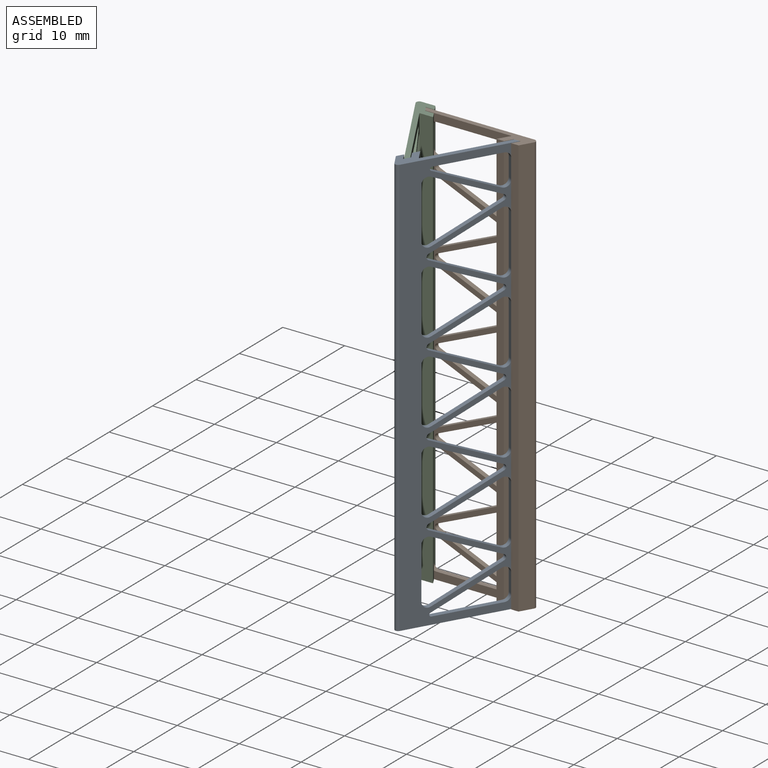
[diagram: assembled view]
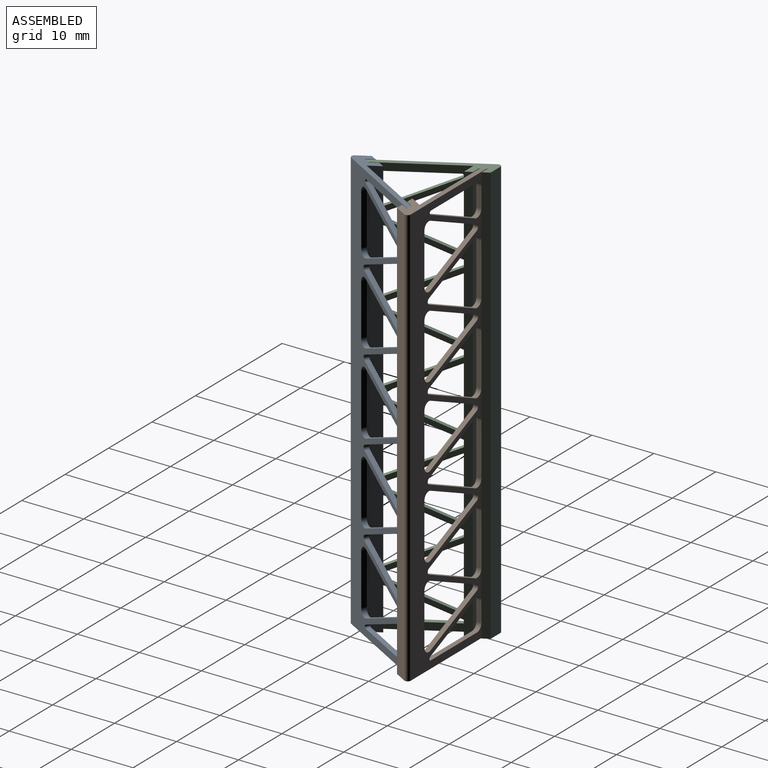
[diagram: assembled view, second angle]
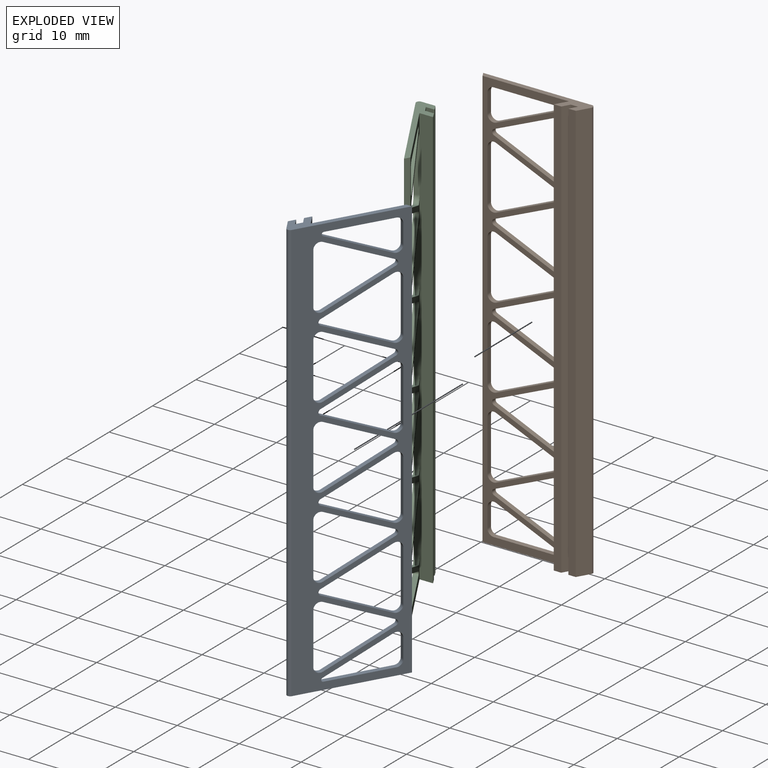
[diagram: exploded view]
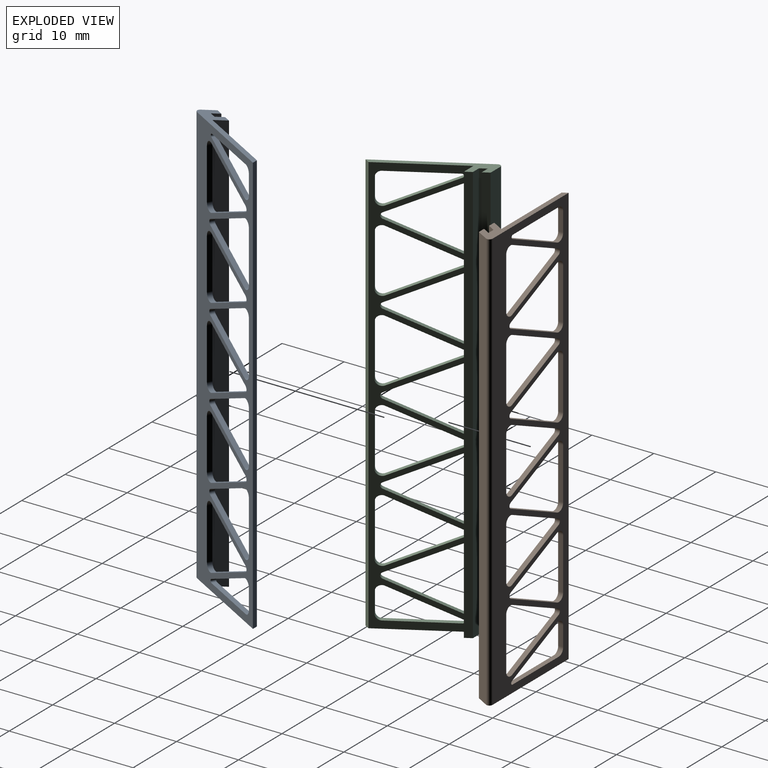
[diagram: exploded view, second angle]
ASSEMBLY  parts=3 mates=2
PART A: 79 faces, bbox 18x2.7x68 mm
  f0: plane 68x17.53mm, normal (0,1,0), area 460.3mm2, adj f3,f10,f11,f12,f13,f14,f15,f16
  f1: plane 68x13.92mm, normal (0,-1,0), area 214.6mm2, adj f3,f4,f10,f11,f12,f13,f14,f15
  f2: plane 68x1.95mm, normal (0.87,-0.5,0), area 153.1mm2, adj f9,f10,f11,f78
  f3: plane 68x0.8mm, normal (-0.87,-0.5,0), area 62.8mm2, adj f0,f1,f10,f11
  f4: plane 68x1.9mm, normal (-0.87,0.5,0), area 149.2mm2, adj f1,f5,f10,f11,f32,f35,f38,f41
  f5: plane 68x1.2mm, normal (0,-1,0), area 81.6mm2, adj f4,f6,f10,f11
  f6: plane 68x1.21mm, normal (0.87,-0.5,0), area 95.2mm2, adj f5,f7,f10,f11
  f7: plane 68x1.15mm, normal (0,-1,0), area 78.5mm2, adj f6,f8,f10,f11
  f8: plane 68x1.21mm, normal (-0.87,0.5,0), area 95.2mm2, adj f7,f9,f10,f11
  f9: plane 68x1.2mm, normal (0,-1,0), area 81.6mm2, adj f2,f8,f10,f11
  f10: plane 18.03x2.7mm, normal (0,0,1), area 19.5mm2, adj f0,f1,f2,f3,f4,f5,f6,f7
  f11: plane 18.03x2.7mm, normal (0,0,-1), area 19.5mm2, adj f0,f1,f2,f3,f4,f5,f6,f7
  f12: plane 10.68x0.8mm, normal (0,0,1), area 8.5mm2, adj f0,f1,f66,f77
  f13: plane 10.4x4.51mm, normal (-0.4,0,-0.92), area 9.1mm2, adj f0,f1,f65,f77
  f14: plane 3.17x0.8mm, normal (1,0,0), area 2.5mm2, adj f0,f1,f65,f66
  f15: plane 3.13x0.8mm, normal (1,0,0), area 2.5mm2, adj f0,f1,f45,f46
  f16: plane 10.31x4.47mm, normal (-0.4,0,0.92), area 9mm2, adj f0,f1,f46,f76
  f17: plane 10.59x0.8mm, normal (0,0,-1), area 8.5mm2, adj f0,f1,f45,f76
  f18: plane 10.67x4.63mm, normal (-0.4,0,0.92), area 9.3mm2, adj f0,f1,f57,f72
  f19: plane 10.67x4.63mm, normal (-0.4,0,-0.92), area 9.3mm2, adj f0,f1,f58,f72
  f20: plane 8.34x0.8mm, normal (1,0,0), area 6.7mm2, adj f0,f1,f57,f58
  f21: plane 10.67x4.63mm, normal (-0.4,0,0.92), area 9.3mm2, adj f0,f1,f61,f74
  f22: plane 10.67x4.63mm, normal (-0.4,0,-0.92), area 9.3mm2, adj f0,f1,f62,f74
  f23: plane 8.34x0.8mm, normal (1,0,0), area 6.7mm2, adj f0,f1,f61,f62
  f24: plane 10.67x4.63mm, normal (-0.4,0,0.92), area 9.3mm2, adj f0,f1,f49,f68
  f25: plane 10.67x4.63mm, normal (-0.4,0,-0.92), area 9.3mm2, adj f0,f1,f50,f68
  f26: plane 8.34x0.8mm, normal (1,0,0), area 6.7mm2, adj f0,f1,f49,f50
  f27: plane 10.67x4.63mm, normal (-0.4,0,0.92), area 9.3mm2, adj f0,f1,f53,f70
  f28: plane 10.67x4.63mm, normal (-0.4,0,-0.92), area 9.3mm2, adj f0,f1,f54,f70
  f29: plane 8.34x0.8mm, normal (1,0,0), area 6.7mm2, adj f0,f1,f53,f54
  f30: plane 10.67x4.63mm, normal (0.4,0,-0.92), area 9.3mm2, adj f0,f1,f47,f67
  f31: plane 10.67x4.63mm, normal (0.4,0,0.92), area 9.3mm2, adj f0,f1,f48,f67
  f32: plane 8.34x0.8mm, normal (-1,0,0), area 6.7mm2, adj f0,f4,f47,f48
  f33: plane 10.67x4.63mm, normal (0.4,0,-0.92), area 9.3mm2, adj f0,f1,f59,f73
  f34: plane 10.67x4.63mm, normal (0.4,0,0.92), area 9.3mm2, adj f0,f1,f60,f73
  f35: plane 8.34x0.8mm, normal (-1,0,0), area 6.7mm2, adj f0,f4,f59,f60
  f36: plane 10.67x4.63mm, normal (0.4,0,-0.92), area 9.3mm2, adj f0,f1,f64,f75
  f37: plane 10.67x4.63mm, normal (0.4,0,0.92), area 9.3mm2, adj f0,f1,f63,f75
  f38: plane 8.34x0.8mm, normal (-1,0,0), area 6.7mm2, adj f0,f4,f63,f64
  f39: plane 10.67x4.63mm, normal (0.4,0,-0.92), area 9.3mm2, adj f0,f1,f51,f69
  f40: plane 10.67x4.63mm, normal (0.4,0,0.92), area 9.3mm2, adj f0,f1,f52,f69
  f41: plane 8.34x0.8mm, normal (-1,0,0), area 6.7mm2, adj f0,f4,f51,f52
  f42: plane 10.67x4.63mm, normal (0.4,0,-0.92), area 9.3mm2, adj f0,f1,f55,f71
  f43: plane 10.67x4.63mm, normal (0.4,0,0.92), area 9.3mm2, adj f0,f1,f56,f71
  f44: plane 8.34x0.8mm, normal (-1,0,0), area 6.7mm2, adj f0,f4,f55,f56
  f45: cylinder r=1mm len=1mm, axis (0,1,0), area 1.3mm2, adj f0,f1,f15,f17
  f46: cylinder r=1mm len=1.4mm, axis (0,-1,0), area 1.6mm2, adj f0,f1,f15,f16
  f47: cylinder r=1mm len=1.4mm, axis (0,1,0), area 1.6mm2, adj f0,f1,f30,f32
  f48: cylinder r=1mm len=1.4mm, axis (0,-1,0), area 1.6mm2, adj f0,f1,f31,f32
  f49: cylinder r=1mm len=1.4mm, axis (0,1,0), area 1.6mm2, adj f0,f1,f24,f26
  f50: cylinder r=1mm len=1.4mm, axis (0,-1,0), area 1.6mm2, adj f0,f1,f25,f26
  f51: cylinder r=1mm len=1.4mm, axis (0,1,0), area 1.6mm2, adj f0,f1,f39,f41
  f52: cylinder r=1mm len=1.4mm, axis (0,1,0), area 1.6mm2, adj f0,f1,f40,f41
  f53: cylinder r=1mm len=1.4mm, axis (0,-1,0), area 1.6mm2, adj f0,f1,f27,f29
  f54: cylinder r=1mm len=1.4mm, axis (0,-1,0), area 1.6mm2, adj f0,f1,f28,f29
  f55: cylinder r=1mm len=1.4mm, axis (0,1,0), area 1.6mm2, adj f0,f1,f42,f44
  f56: cylinder r=1mm len=1.4mm, axis (0,1,0), area 1.6mm2, adj f0,f1,f43,f44
  f57: cylinder r=1mm len=1.4mm, axis (0,-1,0), area 1.6mm2, adj f0,f1,f18,f20
  f58: cylinder r=1mm len=1.4mm, axis (0,-1,0), area 1.6mm2, adj f0,f1,f19,f20
  f59: cylinder r=1mm len=1.4mm, axis (0,1,0), area 1.6mm2, adj f0,f1,f33,f35
  f60: cylinder r=1mm len=1.4mm, axis (0,1,0), area 1.6mm2, adj f0,f1,f34,f35
  f61: cylinder r=1mm len=1.4mm, axis (0,-1,0), area 1.6mm2, adj f0,f1,f21,f23
  f62: cylinder r=1mm len=1.4mm, axis (0,-1,0), area 1.6mm2, adj f0,f1,f22,f23
  f63: cylinder r=1mm len=1.4mm, axis (0,1,0), area 1.6mm2, adj f0,f1,f37,f38
  f64: cylinder r=1mm len=1.4mm, axis (0,1,0), area 1.6mm2, adj f0,f1,f36,f38
  f65: cylinder r=1mm len=1.4mm, axis (0,-1,0), area 1.6mm2, adj f0,f1,f13,f14
  f66: cylinder r=1mm len=1mm, axis (0,-1,0), area 1.3mm2, adj f0,f1,f12,f14
  f67: cylinder r=0.5mm len=0.92mm, axis (0,-1,0), area 0.9mm2, adj f0,f1,f30,f31
  f68: cylinder r=0.5mm len=0.92mm, axis (0,-1,0), area 0.9mm2, adj f0,f1,f24,f25
  f69: cylinder r=0.5mm len=0.92mm, axis (0,1,0), area 0.9mm2, adj f0,f1,f39,f40
  f70: cylinder r=0.5mm len=0.92mm, axis (0,1,0), area 0.9mm2, adj f0,f1,f27,f28
  f71: cylinder r=0.5mm len=0.92mm, axis (0,1,0), area 0.9mm2, adj f0,f1,f42,f43
  f72: cylinder r=0.5mm len=0.92mm, axis (0,1,0), area 0.9mm2, adj f0,f1,f18,f19
  f73: cylinder r=0.5mm len=0.92mm, axis (0,1,0), area 0.9mm2, adj f0,f1,f33,f34
  f74: cylinder r=0.5mm len=0.92mm, axis (0,1,0), area 0.9mm2, adj f0,f1,f21,f22
  f75: cylinder r=0.5mm len=0.92mm, axis (0,1,0), area 0.9mm2, adj f0,f1,f36,f37
  f76: cylinder r=0.3mm len=0.8mm, axis (0,-1,0), area 0.7mm2, adj f0,f1,f16,f17
  f77: cylinder r=0.3mm len=0.8mm, axis (0,1,0), area 0.7mm2, adj f0,f1,f12,f13
  f78: cylinder r=0.5mm len=68mm, axis (0,0,1), area 71.2mm2, adj f0,f2,f10,f11
PART B: same geometry as A
PART C: same geometry as A
PLACE A rot(axis=(0,0,-1),120deg) t=(-14.69,9.97,-5.66)mm
PLACE B t=(-9.18,7.62,-5.66)mm
PLACE C rot(axis=(0,0,1),120deg) t=(-9.9,13.56,-5.66)mm
MATE fastened A.f3 <-> B.f7  axis (0,1,0) through (-3.18,14.32,28.34)mm
MATE fastened C.f7 <-> B.f3  axis (0.87,0.5,0) through (-18.71,15.41,28.34)mm
